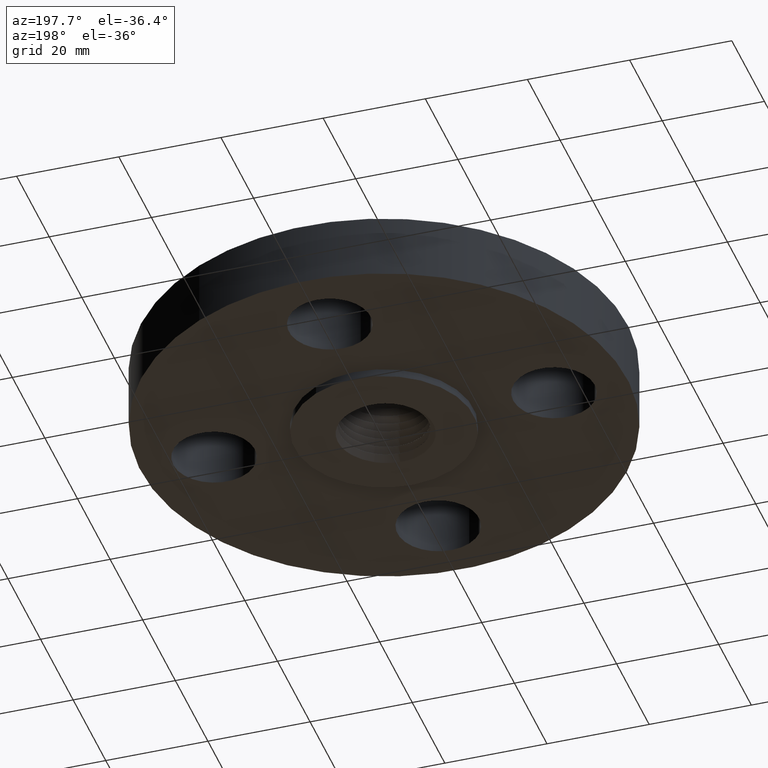
[diagram: clean part render]
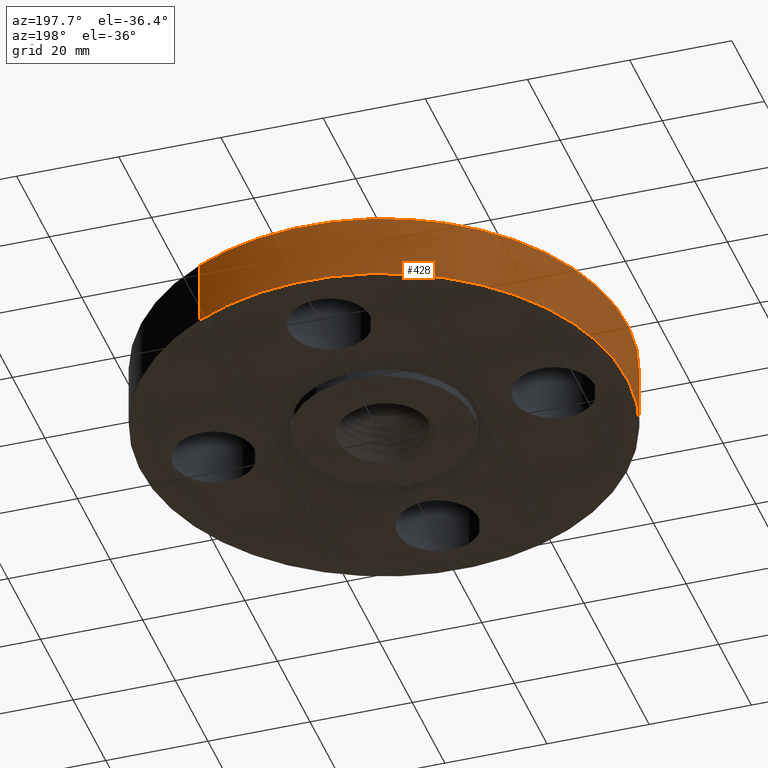
[diagram: same view with one face highlighted and labeled with its STEP entity id]
A machine part, auxiliary view. The second image highlights one B-rep face of the part: STEP entity #428.
In plain terms, the highlighted cylindrical surface (partial cylindrical patch) has radius 47.625 mm, axis along (0, 0, -1).
Its self-contained STEP definition (entity closure, byte-faithful):
#392=AXIS2_PLACEMENT_3D('Cylinder Axis2P3D',#389,#390,#391) ;
#396=AXIS2_PLACEMENT_3D('Circle Axis2P3D',#394,#395,$) ;
#412=AXIS2_PLACEMENT_3D('Circle Axis2P3D',#410,#411,$) ;
#389=CARTESIAN_POINT('Axis2P3D Location',(0.,0.,0.373750000001)) ;
#394=CARTESIAN_POINT('Axis2P3D Location',(0.,0.,6.99353086378E-017)) ;
#398=CARTESIAN_POINT('Vertex',(-0.898922884886,-1.64546730355,6.99353086378E-017)) ;
#400=CARTESIAN_POINT('Vertex',(0.898922884886,1.64546730355,6.99353086378E-017)) ;
#403=CARTESIAN_POINT('Line Origine',(-0.898922884886,-1.64546730355,0.250000000001)) ;
#407=CARTESIAN_POINT('Vertex',(-0.898922884886,-1.64546730355,0.500000000002)) ;
#410=CARTESIAN_POINT('Axis2P3D Location',(0.,0.,0.500000000002)) ;
#414=CARTESIAN_POINT('Vertex',(0.898922884886,1.64546730355,0.500000000002)) ;
#417=CARTESIAN_POINT('Line Origine',(0.898922884886,1.64546730355,0.250000000001)) ;
#390=DIRECTION('Axis2P3D Direction',(0.,0.,-0.0393700787402)) ;
#391=DIRECTION('Axis2P3D XDirection',(0.0188750212049,0.0345504945626,0.)) ;
#395=DIRECTION('Axis2P3D Direction',(0.,0.,-0.0393700787402)) ;
#404=DIRECTION('Vector Direction',(0.,0.,-0.0393700787402)) ;
#411=DIRECTION('Axis2P3D Direction',(0.,0.,-0.0393700787402)) ;
#418=DIRECTION('Vector Direction',(0.,0.,-0.0393700787402)) ;
#405=VECTOR('Line Direction',#404,0.0393700787402) ;
#419=VECTOR('Line Direction',#418,0.0393700787402) ;
#423=ORIENTED_EDGE('',*,*,#402,.F.) ;
#424=ORIENTED_EDGE('',*,*,#409,.T.) ;
#425=ORIENTED_EDGE('',*,*,#416,.T.) ;
#426=ORIENTED_EDGE('',*,*,#421,.F.) ;
#428=ADVANCED_FACE('PartBody',(#427),#393,.T.) ;
#397=CIRCLE('generated circle',#396,1.87500000001) ;
#413=CIRCLE('generated circle',#412,1.87500000001) ;
#393=CYLINDRICAL_SURFACE('generated cylinder',#392,1.87500000001) ;
#402=EDGE_CURVE('',#399,#401,#397,.T.) ;
#409=EDGE_CURVE('',#399,#408,#406,.F.) ;
#416=EDGE_CURVE('',#408,#415,#413,.T.) ;
#421=EDGE_CURVE('',#401,#415,#420,.F.) ;
#422=EDGE_LOOP('',(#423,#424,#425,#426)) ;
#427=FACE_OUTER_BOUND('',#422,.T.) ;
#406=LINE('Line',#403,#405) ;
#420=LINE('Line',#417,#419) ;
#399=VERTEX_POINT('',#398) ;
#401=VERTEX_POINT('',#400) ;
#408=VERTEX_POINT('',#407) ;
#415=VERTEX_POINT('',#414) ;